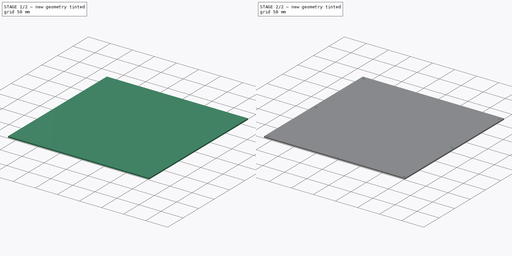
[diagram: build sequence overview — one tinted view per stage of 2, left to right]
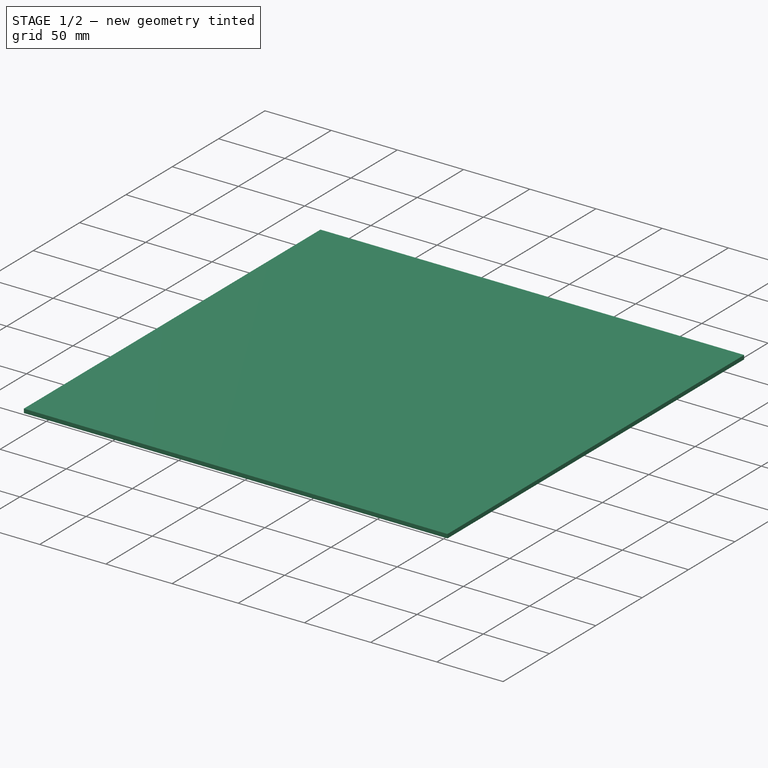
[diagram: stage 1 of 2 — iso view after this stage's code; geometry added in this stage tinted green]
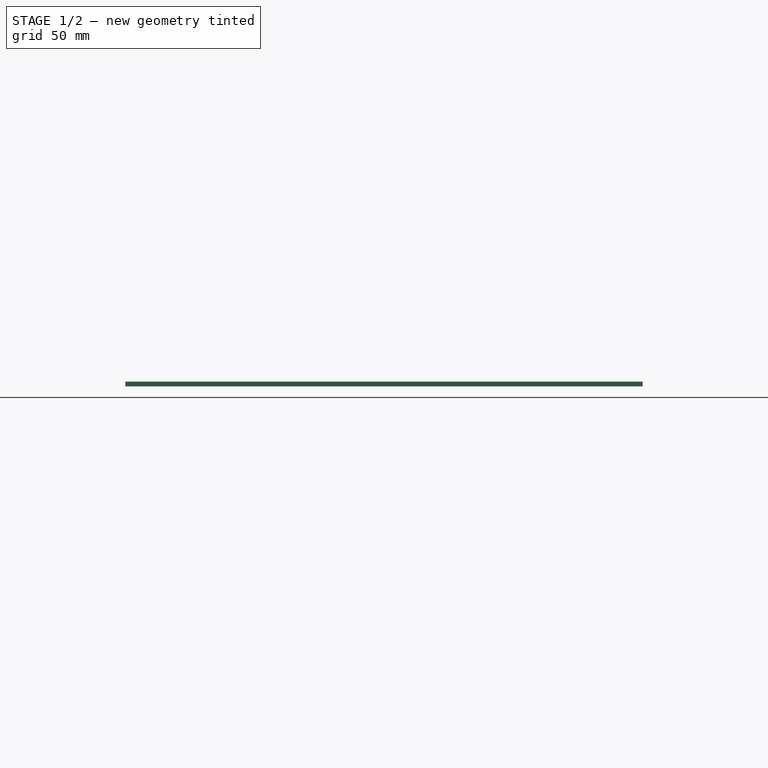
[diagram: stage 1 of 2 — front view after this stage's code; geometry added in this stage tinted green]
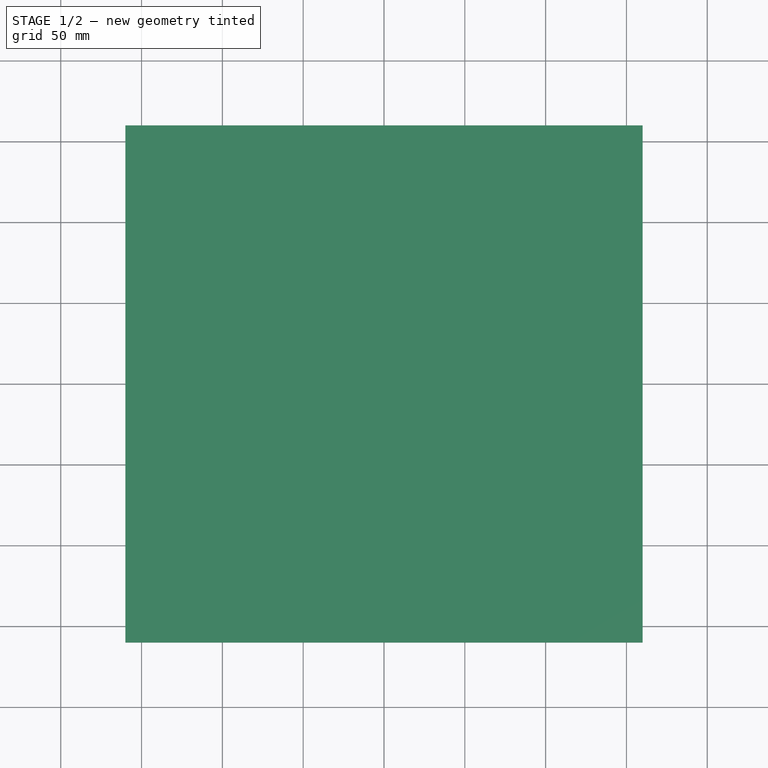
[diagram: stage 1 of 2 — top view after this stage's code; geometry added in this stage tinted green]
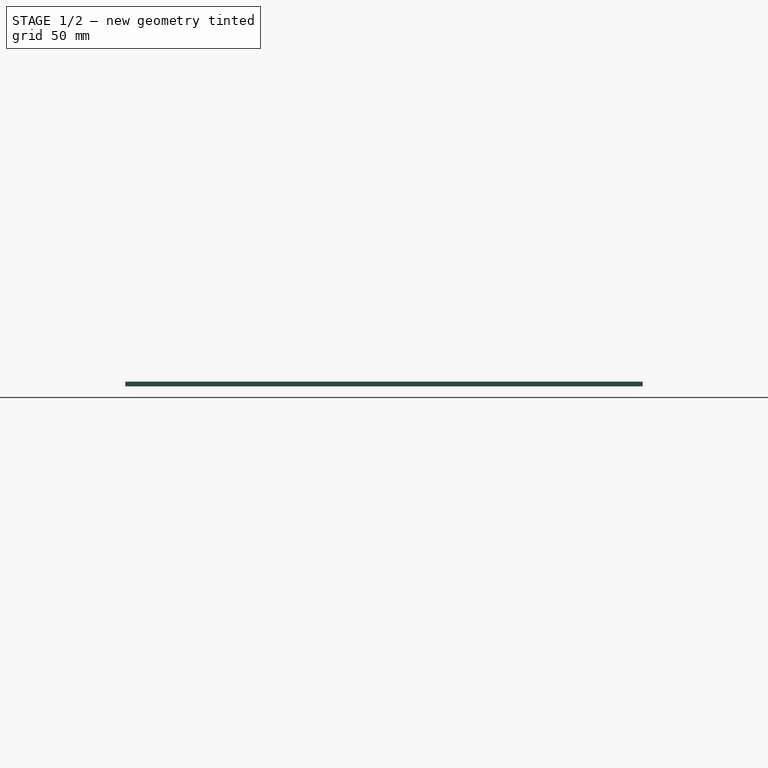
[diagram: stage 1 of 2 — right view after this stage's code; geometry added in this stage tinted green]
FCSTD DOCUMENT  (FreeCAD 0.19R22164 (Git))
Label: heated_bed
License: All rights reserved
LicenseURL: http://en.wikipedia.org/wiki/All_rights_reserved
objects: Sketcher::SketchObject×2, PartDesign::Pad×1, PartDesign::Hole×1, PartDesign::Body×1
note: 7 computed .brp shape members not serialized (recipe doc carries the construction recipe); baked Part::Feature solids carry a one-line shape summary decoded from their .brp

FEATURE [Sketcher::SketchObject] Sketch
  MapMode = 5
  Support = -> [XY_Plane]
  sketch-geometry (4):
    g0: LineSegment StartX=-160 StartY=160 StartZ=0 EndX=160 EndY=160 EndZ=0
    g1: LineSegment StartX=160 StartY=160 StartZ=0 EndX=160 EndY=-160 EndZ=0
    g2: LineSegment StartX=160 StartY=-160 StartZ=0 EndX=-160 EndY=-160 EndZ=0
    g3: LineSegment StartX=-160 StartY=-160 StartZ=0 EndX=-160 EndY=160 EndZ=0
  constraints (12):
    c: Coincident(g0,g1)
    c: Coincident(g1,g2)
    c: Coincident(g2,g3)
    c: Coincident(g3,g0)
    c: Horizontal(g0)
    c: Horizontal(g2)
    c: Vertical(g1)
    c: Vertical(g3)
    c: DistanceX(g-1,g1) = 160
    c: DistanceY(g1,g-1) = 160
    c: DistanceY(g-1,g0) = 160
    c: DistanceX(g2,g-1) = 160
FEATURE [PartDesign::Pad] Pad
  Length = 3
  Length2 = 100
  Profile = -> Sketch
  Type = 0
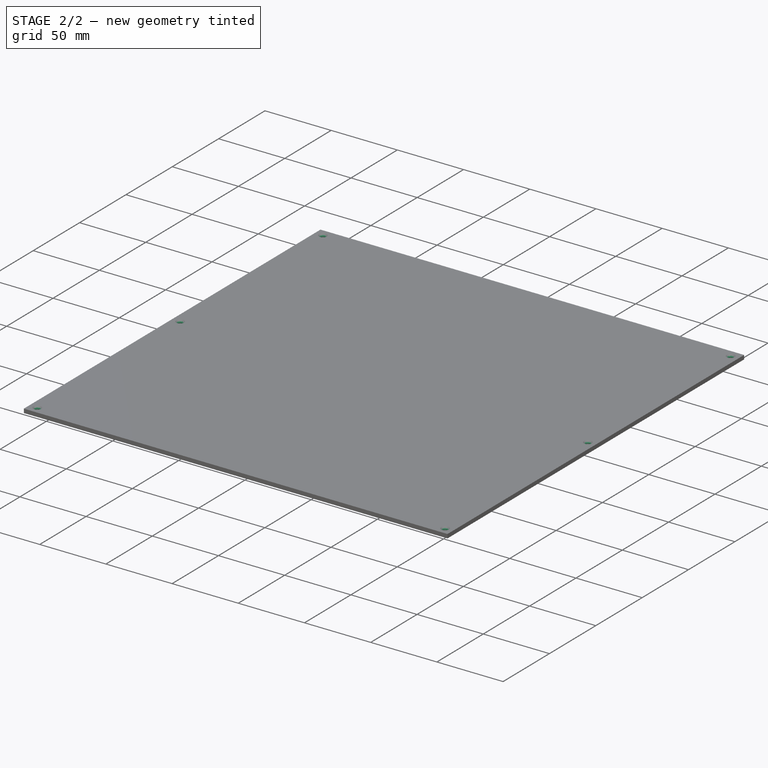
[diagram: stage 2 of 2 — iso view after this stage's code; geometry added in this stage tinted green]
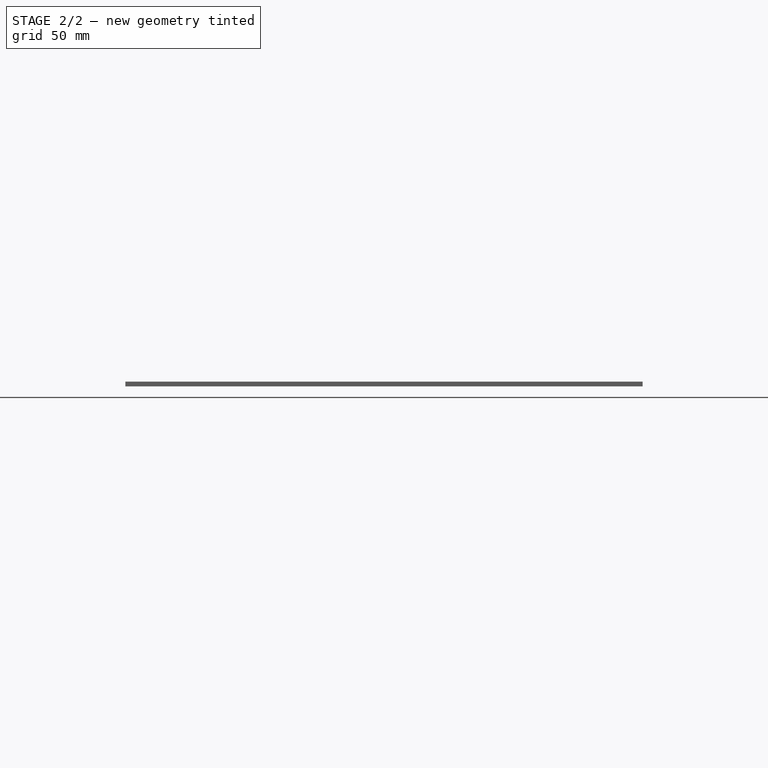
[diagram: stage 2 of 2 — front view after this stage's code; geometry added in this stage tinted green]
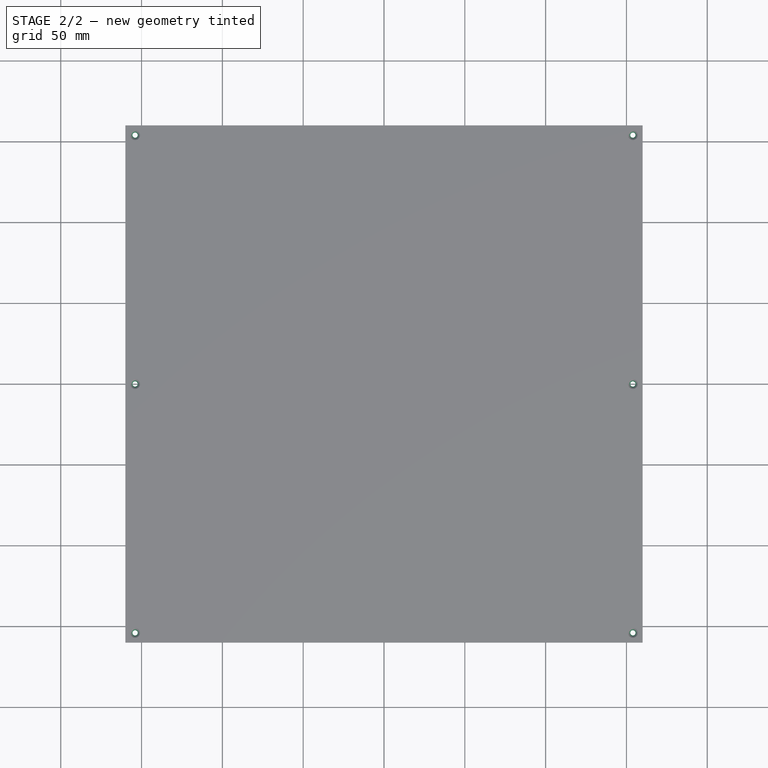
[diagram: stage 2 of 2 — top view after this stage's code; geometry added in this stage tinted green]
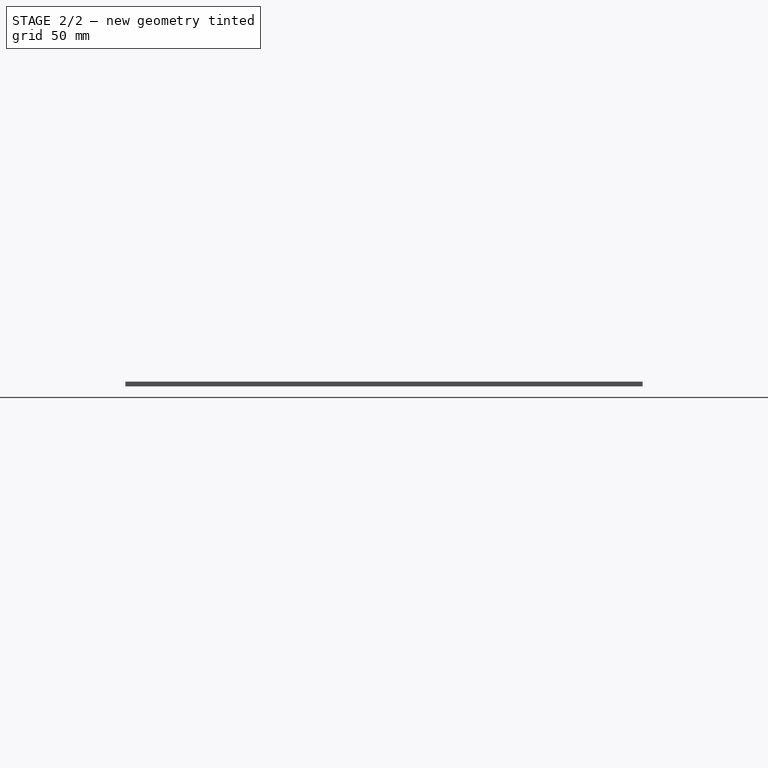
[diagram: stage 2 of 2 — right view after this stage's code; geometry added in this stage tinted green]
FEATURE [Sketcher::SketchObject] Sketch001
  AttachmentOffset = pos=(0,0,3) rot=(0,0,1;0rad)
  MapMode = 5
  Placement = pos=(0,0,3) rot=(0,0,1;0rad)
  Support = -> [XY_Plane]
  sketch-geometry (12):
    g0: GeomPoint X=-154 Y=154 Z=0
    g1: GeomPoint X=-154 Y=0 Z=0
    g2: GeomPoint X=-154 Y=-154 Z=0
    g3: GeomPoint X=154 Y=-154 Z=0
    g4: GeomPoint X=154 Y=0 Z=0
    g5: GeomPoint X=154 Y=154 Z=0
    g6: Circle CenterX=154 CenterY=154 CenterZ=0 NormalX=0 NormalY=0 NormalZ=1 AngleXU=0 Radius=1.5
    g7: Circle CenterX=154 CenterY=-154 CenterZ=0 NormalX=0 NormalY=0 NormalZ=1 AngleXU=0 Radius=1.5
    g8: Circle CenterX=154 CenterY=0 CenterZ=0 NormalX=0 NormalY=0 NormalZ=1 AngleXU=0 Radius=1.5
    g9: Circle CenterX=-154 CenterY=-154 CenterZ=0 NormalX=0 NormalY=0 NormalZ=1 AngleXU=0 Radius=1.5
    g10: Circle CenterX=-154 CenterY=154 CenterZ=0 NormalX=0 NormalY=0 NormalZ=1 AngleXU=0 Radius=1.5
    g11: Circle CenterX=-154 CenterY=0 CenterZ=0 NormalX=0 NormalY=0 NormalZ=1 AngleXU=0 Radius=1.5
  constraints (24):
    c: PointOnObject(g1,g-1)
    c: PointOnObject(g4,g-1)
    c: DistanceX(g4) = 154
    c: DistanceX(g1,g-1) = 154
    c: DistanceX(g-1,g5) = 154
    c: DistanceX(g0,g-1) = 154
    c: DistanceX(g2,g-1) = 154
    c: DistanceX(g-1,g3) = 154
    c: DistanceY(g-1,g5) = 154
    c: DistanceY(g3,g-1) = 154
    c: DistanceY(g2,g-1) = 154
    c: DistanceY(g-1,g0) = 154
    c: Radius(g6) = 1.5
    c: Radius(g7) = 1.5
    c: Radius(g8) = 1.5
    c: Radius(g9) = 1.5
    c: Coincident(g6,g5)
    c: Coincident(g8,g4)
    c: Coincident(g7,g3)
    c: Coincident(g9,g2)
    c: Coincident(g10,g0)
    c: Coincident(g11,g1)
    c: Radius(g11) = 1.5
    c: Radius(g10) = 1.5
FEATURE [PartDesign::Hole] Hole
  BaseFeature = -> Pad
  Depth = 3
  DepthType = 0
  Diameter = 3.25
  DrillPoint = 0
  DrillPointAngle = 118
  HoleCutCountersinkAngle = 90
  HoleCutDepth = 0
  HoleCutDiameter = 6
  HoleCutType = 2
  ModelActualThread = false
  Profile = -> Sketch001
  Tapered = false
  TaperedAngle = 90
  ThreadAngle = 0
  ThreadClass = 0
  ThreadCutOffInner = 0
  ThreadCutOffOuter = 0
  ThreadDirection = 0
  ThreadFit = 0
  ThreadPitch = 0
  ThreadSize = 0
  ThreadType = 0
  Threaded = false
FEATURE [PartDesign::Body] Body
  Group = -> [Sketch,Pad,Sketch001,Hole]
  Origin = -> Origin
  Tip = -> Hole
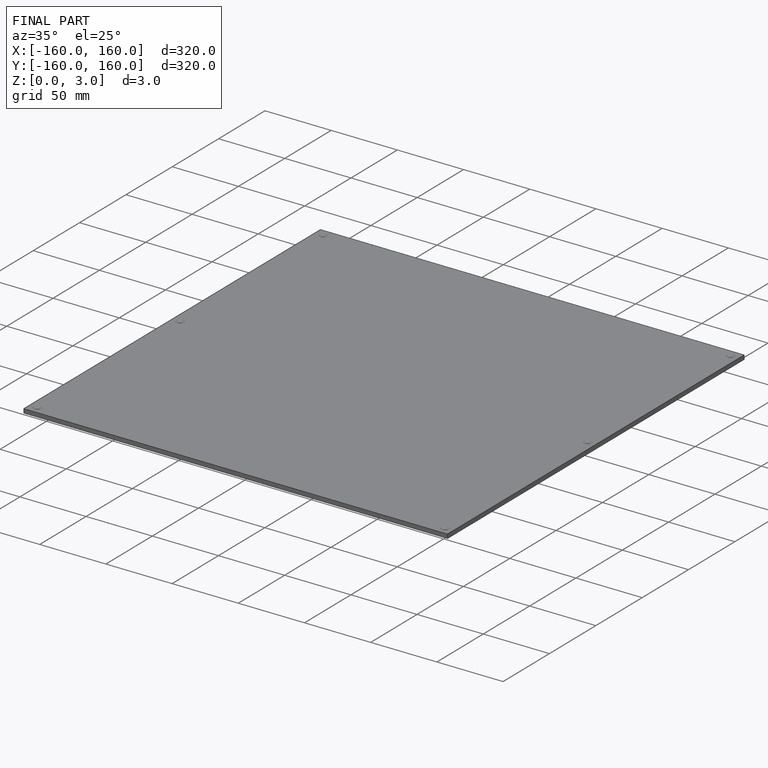
[diagram: finished part — iso view with bounding-box wireframe]
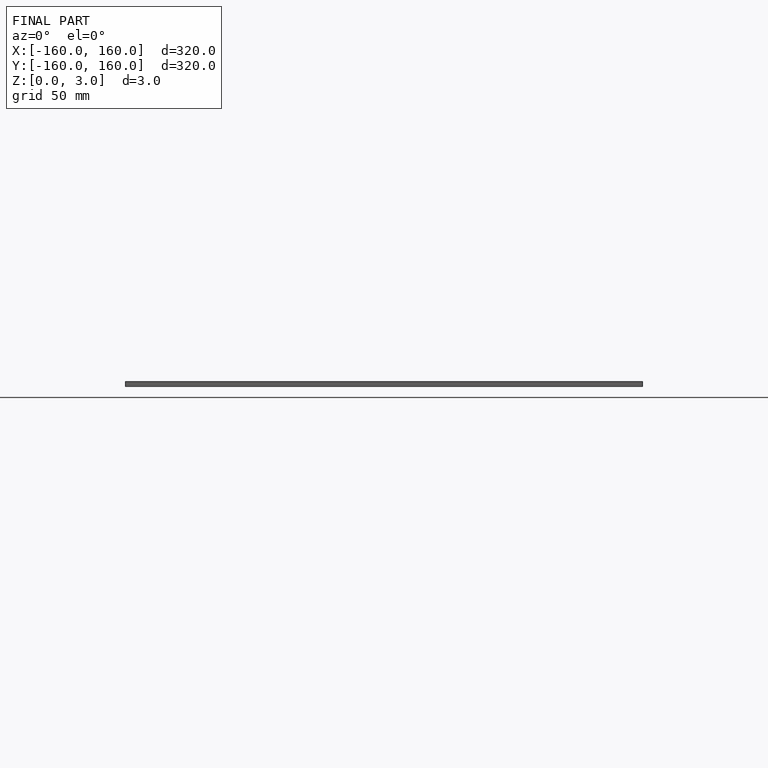
[diagram: finished part — front view with bounding-box wireframe]
